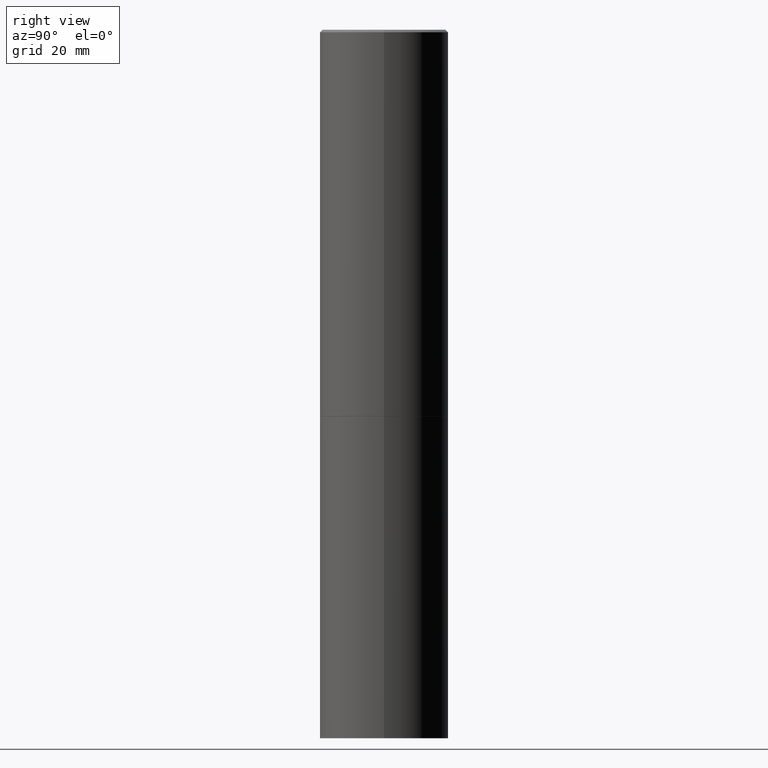
[diagram: clean part render]
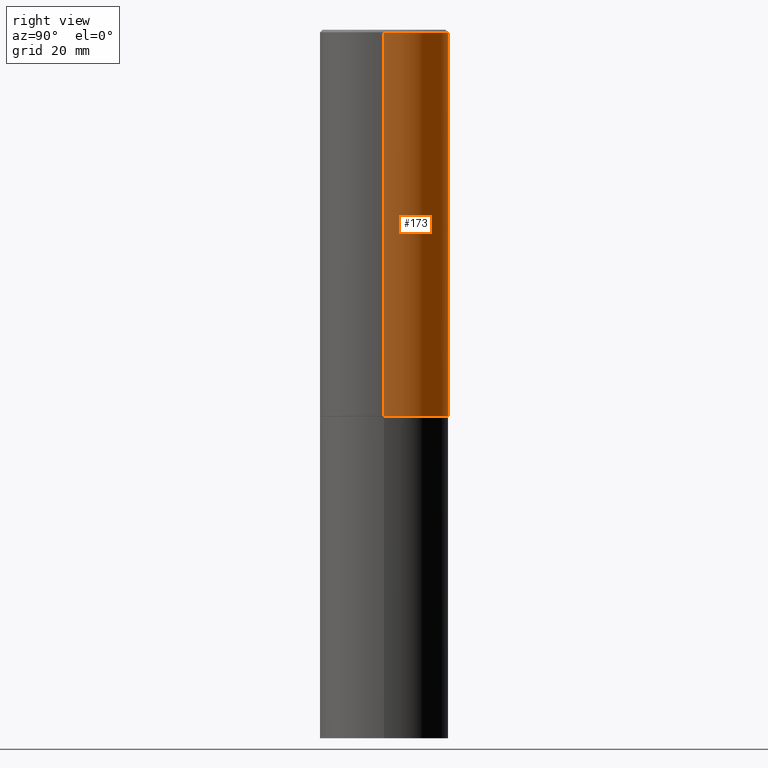
[diagram: same view with one face highlighted and labeled with its STEP entity id]
A machine part, right view. The second image highlights one B-rep face of the part: STEP entity #173.
In plain terms, the highlighted cylindrical surface (partial cylindrical patch) has radius 12.7 mm, axis along (-0, 0, 1).
Its self-contained STEP definition (entity closure, byte-faithful):
#1 = DIRECTION ( 'NONE',  ( 1.000000000000000000, -6.982962677686267499E-15, 4.876176775795936353E-29 ) ) ;
#17 = VERTEX_POINT ( 'NONE', #273 ) ;
#23 = FACE_OUTER_BOUND ( 'NONE', #127, .T. ) ;
#27 = DIRECTION ( 'NONE',  ( -2.445468806185136597E-29, 3.491481338843145583E-15, 1.000000000000000000 ) ) ;
#30 = EDGE_CURVE ( 'NONE', #184, #130, #200, .T. ) ;
#34 = ORIENTED_EDGE ( 'NONE', *, *, #265, .F. ) ;
#41 = CIRCLE ( 'NONE', #151, 0.5000000000000000000 ) ;
#68 = DIRECTION ( 'NONE',  ( -2.445468806185136877E-29, 3.491481338843145188E-15, 1.000000000000000000 ) ) ;
#73 = ORIENTED_EDGE ( 'NONE', *, *, #278, .T. ) ;
#78 = CYLINDRICAL_SURFACE ( 'NONE', #289, 0.4999999999999998335 ) ;
#80 = CARTESIAN_POINT ( 'NONE',  ( -0.4999999999999997224, 3.421651712066268085E-15, -0.02000000000000012879 ) ) ;
#82 = EDGE_CURVE ( 'NONE', #288, #130, #249, .T. ) ;
#83 = CARTESIAN_POINT ( 'NONE',  ( 0.000000000000000000, 0.000000000000000000, 0.000000000000000000 ) ) ;
#99 = ORIENTED_EDGE ( 'NONE', *, *, #30, .F. ) ;
#106 = CARTESIAN_POINT ( 'NONE',  ( -0.4999999999999998335, 3.552713678800499746E-15, -2.459467545127452330E-29 ) ) ;
#111 = CARTESIAN_POINT ( 'NONE',  ( 0.4999999999999997224, -3.500078625662627502E-15, -0.02000000000000012879 ) ) ;
#112 = DIRECTION ( 'NONE',  ( -2.445468806185136877E-29, 3.491481338843145188E-15, 1.000000000000000000 ) ) ;
#127 = EDGE_LOOP ( 'NONE', ( #73, #351, #99, #34 ) ) ;
#130 = VERTEX_POINT ( 'NONE', #80 ) ;
#133 = DIRECTION ( 'NONE',  ( -2.445468806185136597E-29, 3.491481338843145583E-15, 1.000000000000000000 ) ) ;
#151 = AXIS2_PLACEMENT_3D ( 'NONE', #171, #27, #263 ) ;
#171 = CARTESIAN_POINT ( 'NONE',  ( 7.333960949749226429E-29, -1.047095253519059492E-14, -2.999000000000000554 ) ) ;
#173 = ADVANCED_FACE ( 'NONE', ( #23 ), #78, .T. ) ;
#184 = VERTEX_POINT ( 'NONE', #111 ) ;
#200 = CIRCLE ( 'NONE', #236, 0.4999999999999997224 ) ;
#217 = CARTESIAN_POINT ( 'NONE',  ( 4.890937612370304688E-31, -6.982962677686335982E-17, -0.02000000000000012879 ) ) ;
#219 = DIRECTION ( 'NONE',  ( 1.000000000000000000, -6.982962677686266711E-15, 0.000000000000000000 ) ) ;
#221 = LINE ( 'NONE', #283, #300 ) ;
#236 = AXIS2_PLACEMENT_3D ( 'NONE', #217, #133, #219 ) ;
#249 = LINE ( 'NONE', #106, #281 ) ;
#256 = DIRECTION ( 'NONE',  ( -2.445468806185136597E-29, 3.491481338843145583E-15, 1.000000000000000000 ) ) ;
#263 = DIRECTION ( 'NONE',  ( 1.000000000000000000, -6.982962677686266711E-15, 0.000000000000000000 ) ) ;
#265 = EDGE_CURVE ( 'NONE', #17, #184, #221, .T. ) ;
#273 = CARTESIAN_POINT ( 'NONE',  ( 0.5000000000000000000, -1.396243387403372828E-14, -2.999000000000000554 ) ) ;
#278 = EDGE_CURVE ( 'NONE', #17, #288, #41, .T. ) ;
#281 = VECTOR ( 'NONE', #68, 39.37007874015748143 ) ;
#283 = CARTESIAN_POINT ( 'NONE',  ( 0.4999999999999998335, -3.491481338843132566E-15, 2.438088387897967336E-29 ) ) ;
#288 = VERTEX_POINT ( 'NONE', #337 ) ;
#289 = AXIS2_PLACEMENT_3D ( 'NONE', #83, #256, #1 ) ;
#300 = VECTOR ( 'NONE', #112, 39.37007874015748143 ) ;
#337 = CARTESIAN_POINT ( 'NONE',  ( -0.5000000000000000000, -1.717677402183226998E-15, -2.999000000000000554 ) ) ;
#351 = ORIENTED_EDGE ( 'NONE', *, *, #82, .T. ) ;